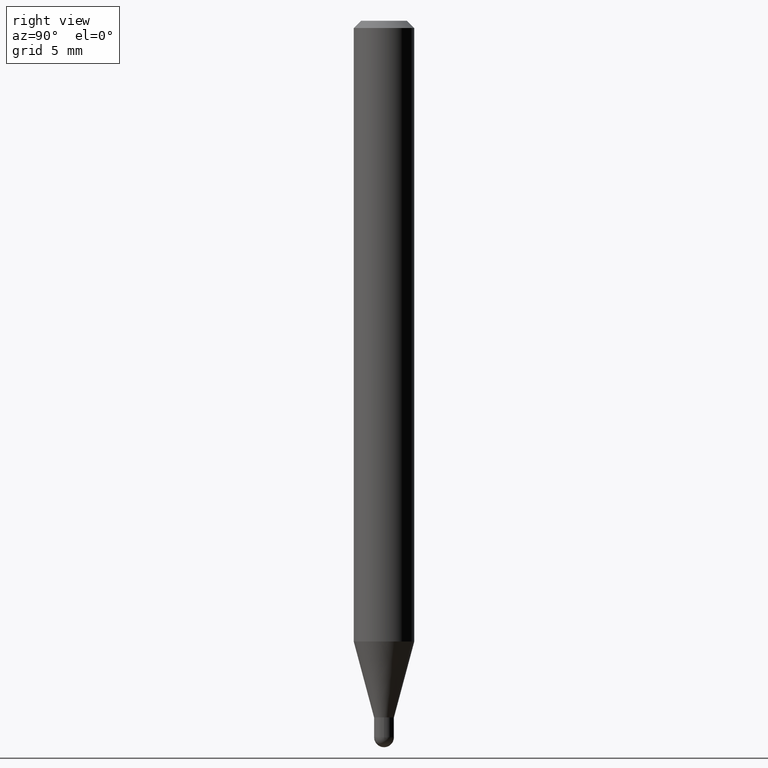
[diagram: clean part render]
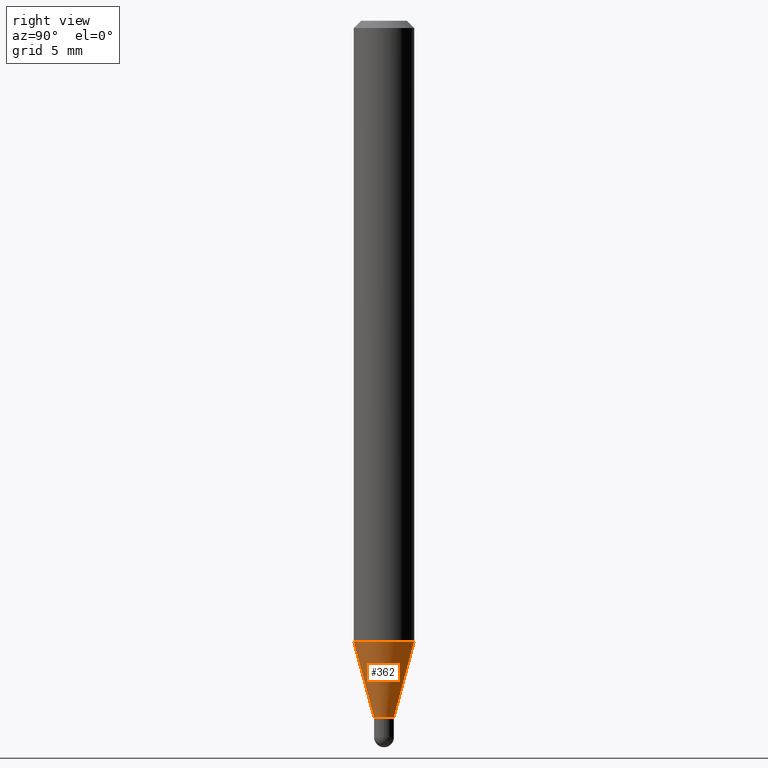
[diagram: same view with one face highlighted and labeled with its STEP entity id]
A machine part, right view. The second image highlights one B-rep face of the part: STEP entity #362.
In plain terms, the highlighted conical surface has half-angle 15 deg.
Its self-contained STEP definition (entity closure, byte-faithful):
#27 = CARTESIAN_POINT ( 'NONE',  ( 3.134502450708113125E-29, -4.475200580731833085E-15, -1.281753866082112392 ) ) ;
#35 = EDGE_CURVE ( 'NONE', #314, #105, #183, .T. ) ;
#40 = EDGE_CURVE ( 'NONE', #105, #479, #459, .T. ) ;
#43 = VECTOR ( 'NONE', #339, 39.37007874015748143 ) ;
#45 = ORIENTED_EDGE ( 'NONE', *, *, #379, .T. ) ;
#105 = VERTEX_POINT ( 'NONE', #389 ) ;
#107 = EDGE_CURVE ( 'NONE', #209, #479, #295, .T. ) ;
#121 = ORIENTED_EDGE ( 'NONE', *, *, #107, .T. ) ;
#133 = DIRECTION ( 'NONE',  ( -2.445479224719817573E-29, 3.491466418908496323E-15, 1.000000000000000000 ) ) ;
#157 = CIRCLE ( 'NONE', #448, 0.02049999999999992106 ) ;
#163 = CONICAL_SURFACE ( 'NONE', #378, 0.02049999999999992106, 0.2617993877991575680 ) ;
#170 = FACE_OUTER_BOUND ( 'NONE', #361, .T. ) ;
#179 = ORIENTED_EDGE ( 'NONE', *, *, #40, .F. ) ;
#183 = LINE ( 'NONE', #346, #43 ) ;
#187 = CARTESIAN_POINT ( 'NONE',  ( 1.456612608308551308E-16, 0.02049999999999489730, -1.438500000000000556 ) ) ;
#209 = VERTEX_POINT ( 'NONE', #434 ) ;
#229 = CARTESIAN_POINT ( 'NONE',  ( 3.517821864759459632E-29, -5.022474443599874180E-15, -1.438500000000000556 ) ) ;
#259 = DIRECTION ( 'NONE',  ( -6.982962677686265133E-15, -1.000000000000000000, 0.000000000000000000 ) ) ;
#264 = DIRECTION ( 'NONE',  ( -6.982962677686265922E-15, -1.000000000000000000, 4.370956789862821150E-15 ) ) ;
#284 = DIRECTION ( 'NONE',  ( -6.982962677686265133E-15, -1.000000000000000000, 0.000000000000000000 ) ) ;
#295 = LINE ( 'NONE', #187, #425 ) ;
#302 = DIRECTION ( 'NONE',  ( -2.445479224719817573E-29, 3.491466418908496323E-15, 1.000000000000000000 ) ) ;
#314 = VERTEX_POINT ( 'NONE', #326 ) ;
#326 = CARTESIAN_POINT ( 'NONE',  ( -1.431507348925326996E-16, -0.02050000000000494482, -1.438500000000000556 ) ) ;
#327 = AXIS2_PLACEMENT_3D ( 'NONE', #27, #302, #264 ) ;
#339 = DIRECTION ( 'NONE',  ( -1.807323732225379443E-15, -0.2588190451025252359, 0.9659258262890670910 ) ) ;
#346 = CARTESIAN_POINT ( 'NONE',  ( -1.431507348925326996E-16, -0.02050000000000494482, -1.438500000000000556 ) ) ;
#361 = EDGE_LOOP ( 'NONE', ( #45, #121, #179, #455 ) ) ;
#362 = ADVANCED_FACE ( 'NONE', ( #170 ), #163, .T. ) ;
#377 = DIRECTION ( 'NONE',  ( 1.839019923739650408E-15, 0.2588190451025319527, 0.9659258262890650926 ) ) ;
#378 = AXIS2_PLACEMENT_3D ( 'NONE', #486, #133, #284 ) ;
#379 = EDGE_CURVE ( 'NONE', #314, #209, #157, .T. ) ;
#382 = DIRECTION ( 'NONE',  ( -2.445479224719817573E-29, 3.491466418908496323E-15, 1.000000000000000000 ) ) ;
#389 = CARTESIAN_POINT ( 'NONE',  ( -4.364351673553603122E-16, -0.06250000000000449640, -1.281753866082112170 ) ) ;
#425 = VECTOR ( 'NONE', #377, 39.37007874015748854 ) ;
#434 = CARTESIAN_POINT ( 'NONE',  ( 2.948752353404746261E-16, 0.02049999999999489730, -1.438500000000000556 ) ) ;
#448 = AXIS2_PLACEMENT_3D ( 'NONE', #229, #382, #259 ) ;
#453 = CARTESIAN_POINT ( 'NONE',  ( 4.440892098500937762E-16, 0.06249999999999551054, -1.281753866082112836 ) ) ;
#455 = ORIENTED_EDGE ( 'NONE', *, *, #35, .F. ) ;
#459 = CIRCLE ( 'NONE', #327, 0.06250000000000000000 ) ;
#479 = VERTEX_POINT ( 'NONE', #453 ) ;
#486 = CARTESIAN_POINT ( 'NONE',  ( 3.517821864759459632E-29, -5.022474443599874180E-15, -1.438500000000000556 ) ) ;